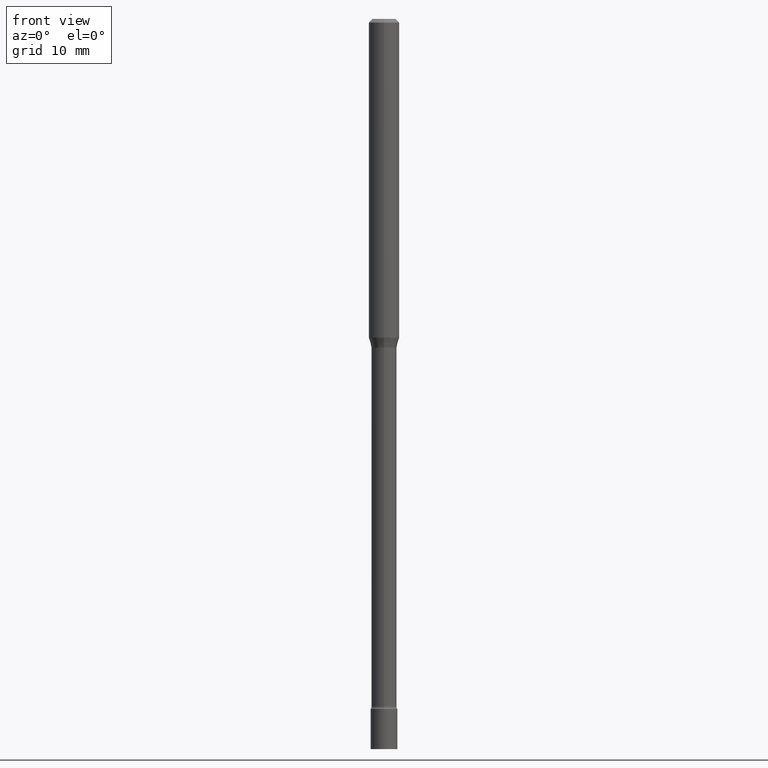
[diagram: clean part render]
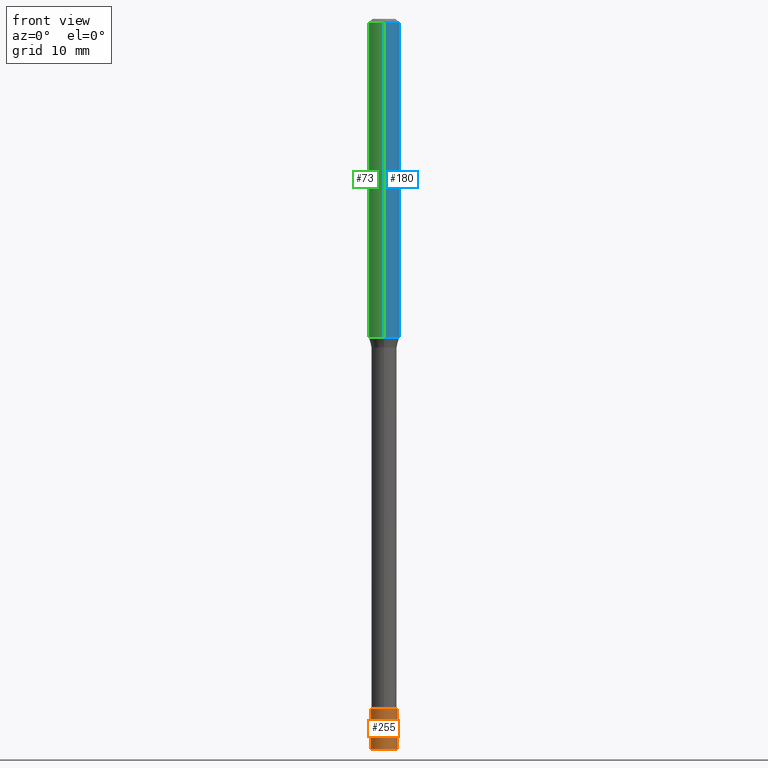
[diagram: same view with three faces highlighted in distinct colors, each labeled with its STEP entity id]
A machine part, front view with three faces highlighted in distinct colors.
Their STEP definitions:

[orange] entity #255 — the highlighted cylindrical surface (edge-blend (fillet) strip) has radius 1.397 mm, axis along (-0, 0, 1).
#23 = DIRECTION ( 'NONE',  ( 1.000000000000000000, -6.982962677686266711E-15, 4.876176775795935793E-29 ) ) ;
#50 = AXIS2_PLACEMENT_3D ( 'NONE', #215, #100, #173 ) ;
#97 = CARTESIAN_POINT ( 'NONE',  ( 0.000000000000000000, 0.000000000000000000, 0.000000000000000000 ) ) ;
#100 = DIRECTION ( 'NONE',  ( -2.445468806185136597E-29, 3.491481338843145583E-15, 1.000000000000000000 ) ) ;
#117 = VECTOR ( 'NONE', #250, 39.37007874015748143 ) ;
#123 = VERTEX_POINT ( 'NONE', #373 ) ;
#130 = CARTESIAN_POINT ( 'NONE',  ( -0.05500000000000000028, -9.795598301406821771E-15, -2.835000000000000409 ) ) ;
#135 = EDGE_CURVE ( 'NONE', #470, #161, #363, .T. ) ;
#161 = VERTEX_POINT ( 'NONE', #256 ) ;
#165 = LINE ( 'NONE', #286, #117 ) ;
#172 = FACE_OUTER_BOUND ( 'NONE', #361, .T. ) ;
#173 = DIRECTION ( 'NONE',  ( 1.000000000000000000, -6.982962677686279332E-15, 0.000000000000000000 ) ) ;
#186 = LINE ( 'NONE', #436, #375 ) ;
#213 = EDGE_CURVE ( 'NONE', #123, #161, #165, .T. ) ;
#215 = CARTESIAN_POINT ( 'NONE',  ( 6.932904065534862655E-29, -9.898349595620319665E-15, -2.835000000000000409 ) ) ;
#221 = ORIENTED_EDGE ( 'NONE', *, *, #135, .F. ) ;
#226 = VERTEX_POINT ( 'NONE', #329 ) ;
#228 = DIRECTION ( 'NONE',  ( 1.000000000000000000, -6.982962677686279332E-15, 0.000000000000000000 ) ) ;
#250 = DIRECTION ( 'NONE',  ( -2.445468806185136877E-29, 3.491481338843145188E-15, 1.000000000000000000 ) ) ;
#255 = ADVANCED_FACE ( 'NONE', ( #172 ), #337, .T. ) ;
#256 = CARTESIAN_POINT ( 'NONE',  ( 0.05500000000000000028, -1.028241254289306465E-14, -2.835000000000000409 ) ) ;
#280 = DIRECTION ( 'NONE',  ( -2.445468806185136877E-29, 3.491481338843145188E-15, 1.000000000000000000 ) ) ;
#286 = CARTESIAN_POINT ( 'NONE',  ( 0.05500000000000000028, -3.840629472727446888E-16, 2.681897226687764826E-30 ) ) ;
#294 = DIRECTION ( 'NONE',  ( -2.445468806185136597E-29, 3.491481338843145583E-15, 1.000000000000000000 ) ) ;
#305 = EDGE_CURVE ( 'NONE', #226, #123, #417, .T. ) ;
#310 = DIRECTION ( 'NONE',  ( -2.445468806185136597E-29, 3.491481338843145583E-15, 1.000000000000000000 ) ) ;
#324 = ORIENTED_EDGE ( 'NONE', *, *, #421, .F. ) ;
#327 = ORIENTED_EDGE ( 'NONE', *, *, #305, .T. ) ;
#329 = CARTESIAN_POINT ( 'NONE',  ( -0.05500000000000000028, -9.795598301406821771E-15, -3.000000000000000444 ) ) ;
#337 = CYLINDRICAL_SURFACE ( 'NONE', #507, 0.05500000000000000028 ) ;
#351 = AXIS2_PLACEMENT_3D ( 'NONE', #394, #310, #228 ) ;
#354 = ORIENTED_EDGE ( 'NONE', *, *, #213, .T. ) ;
#361 = EDGE_LOOP ( 'NONE', ( #324, #327, #354, #221 ) ) ;
#363 = CIRCLE ( 'NONE', #50, 0.05500000000000000028 ) ;
#373 = CARTESIAN_POINT ( 'NONE',  ( 0.05500000000000000028, -1.085850696380218292E-14, -3.000000000000000444 ) ) ;
#375 = VECTOR ( 'NONE', #280, 39.37007874015748143 ) ;
#394 = CARTESIAN_POINT ( 'NONE',  ( 7.336406418555409790E-29, -1.047444401652943635E-14, -3.000000000000000444 ) ) ;
#417 = CIRCLE ( 'NONE', #351, 0.05500000000000000028 ) ;
#421 = EDGE_CURVE ( 'NONE', #226, #470, #186, .T. ) ;
#436 = CARTESIAN_POINT ( 'NONE',  ( -0.05500000000000000028, 3.907985046680551042E-16, -2.705414299640198362E-30 ) ) ;
#470 = VERTEX_POINT ( 'NONE', #130 ) ;
#507 = AXIS2_PLACEMENT_3D ( 'NONE', #97, #294, #23 ) ;

[blue] entity #180 — the highlighted cylindrical surface (edge-blend (fillet) strip) has radius 1.5875 mm, axis along (-0, 0, 1).
#1 = DIRECTION ( 'NONE',  ( -2.445453515065579190E-29, 3.491503236596668519E-15, 1.000000000000000000 ) ) ;
#20 = AXIS2_PLACEMENT_3D ( 'NONE', #251, #485, #416 ) ;
#26 = VERTEX_POINT ( 'NONE', #312 ) ;
#30 = ORIENTED_EDGE ( 'NONE', *, *, #59, .F. ) ;
#41 = CARTESIAN_POINT ( 'NONE',  ( 3.202795432268188890E-29, -4.572800320688787999E-15, -1.309693851278256549 ) ) ;
#59 = EDGE_CURVE ( 'NONE', #26, #333, #266, .T. ) ;
#69 = DIRECTION ( 'NONE',  ( -2.445453515065579470E-29, 3.491503236596668913E-15, 1.000000000000000000 ) ) ;
#120 = LINE ( 'NONE', #476, #296 ) ;
#121 = VECTOR ( 'NONE', #352, 39.37007874015748143 ) ;
#140 = VERTEX_POINT ( 'NONE', #219 ) ;
#162 = CARTESIAN_POINT ( 'NONE',  ( 0.000000000000000000, 0.000000000000000000, 0.000000000000000000 ) ) ;
#180 = ADVANCED_FACE ( 'NONE', ( #222 ), #460, .T. ) ;
#219 = CARTESIAN_POINT ( 'NONE',  ( 4.440892098500946636E-16, 0.06249999999999545502, -1.309693851278256771 ) ) ;
#222 = FACE_OUTER_BOUND ( 'NONE', #396, .T. ) ;
#247 = DIRECTION ( 'NONE',  ( -6.982962677686265922E-15, -1.000000000000000000, 3.491503236596668124E-15 ) ) ;
#251 = CARTESIAN_POINT ( 'NONE',  ( 3.668180272598376107E-31, -5.237254854895013132E-17, -0.01500000000000003067 ) ) ;
#266 = LINE ( 'NONE', #404, #121 ) ;
#296 = VECTOR ( 'NONE', #69, 39.37007874015748143 ) ;
#312 = CARTESIAN_POINT ( 'NONE',  ( -4.364351673553594740E-16, -0.06250000000000453804, -1.309693851278256327 ) ) ;
#330 = DIRECTION ( 'NONE',  ( -2.445453515065579190E-29, 3.491503236596668519E-15, 1.000000000000000000 ) ) ;
#331 = AXIS2_PLACEMENT_3D ( 'NONE', #162, #1, #247 ) ;
#333 = VERTEX_POINT ( 'NONE', #353 ) ;
#352 = DIRECTION ( 'NONE',  ( -2.445453515065579470E-29, 3.491503236596668913E-15, 1.000000000000000000 ) ) ;
#353 = CARTESIAN_POINT ( 'NONE',  ( -4.364351673553912750E-16, -0.06250000000000005551, -0.01499999999999981209 ) ) ;
#364 = CARTESIAN_POINT ( 'NONE',  ( 4.440892098500948609E-16, 0.06249999999999995143, -0.01500000000000024751 ) ) ;
#380 = CIRCLE ( 'NONE', #426, 0.06250000000000000000 ) ;
#381 = ORIENTED_EDGE ( 'NONE', *, *, #483, .F. ) ;
#396 = EDGE_LOOP ( 'NONE', ( #440, #482, #381, #30 ) ) ;
#404 = CARTESIAN_POINT ( 'NONE',  ( -4.364351673553916201E-16, -0.06250000000000000000, 2.182189522872917578E-16 ) ) ;
#408 = EDGE_CURVE ( 'NONE', #140, #511, #120, .T. ) ;
#416 = DIRECTION ( 'NONE',  ( -6.982962677686265922E-15, -1.000000000000000000, 3.483106191921935554E-15 ) ) ;
#426 = AXIS2_PLACEMENT_3D ( 'NONE', #41, #330, #446 ) ;
#434 = CIRCLE ( 'NONE', #20, 0.06250000000000000000 ) ;
#440 = ORIENTED_EDGE ( 'NONE', *, *, #500, .T. ) ;
#446 = DIRECTION ( 'NONE',  ( -6.982962677686265922E-15, -1.000000000000000000, 4.370956789862821150E-15 ) ) ;
#460 = CYLINDRICAL_SURFACE ( 'NONE', #331, 0.06250000000000000000 ) ;
#476 = CARTESIAN_POINT ( 'NONE',  ( 4.440892098500625669E-16, 0.06250000000000000000, -2.182189522872917578E-16 ) ) ;
#482 = ORIENTED_EDGE ( 'NONE', *, *, #408, .T. ) ;
#483 = EDGE_CURVE ( 'NONE', #333, #511, #434, .T. ) ;
#485 = DIRECTION ( 'NONE',  ( -2.445453515065579190E-29, 3.491503236596668519E-15, 1.000000000000000000 ) ) ;
#500 = EDGE_CURVE ( 'NONE', #26, #140, #380, .T. ) ;
#511 = VERTEX_POINT ( 'NONE', #364 ) ;

[green] entity #73 — the highlighted cylindrical surface (edge-blend (fillet) strip) has radius 1.5875 mm, axis along (-0, 0, 1).
#11 = DIRECTION ( 'NONE',  ( -6.982962677686265922E-15, -1.000000000000000000, 4.370956789862821150E-15 ) ) ;
#26 = VERTEX_POINT ( 'NONE', #312 ) ;
#53 = CARTESIAN_POINT ( 'NONE',  ( 3.202795432268188890E-29, -4.572800320688787999E-15, -1.309693851278256549 ) ) ;
#59 = EDGE_CURVE ( 'NONE', #26, #333, #266, .T. ) ;
#69 = DIRECTION ( 'NONE',  ( -2.445453515065579470E-29, 3.491503236596668913E-15, 1.000000000000000000 ) ) ;
#73 = ADVANCED_FACE ( 'NONE', ( #150 ), #317, .T. ) ;
#94 = CARTESIAN_POINT ( 'NONE',  ( 3.668180272598376107E-31, -5.237254854895013132E-17, -0.01500000000000003067 ) ) ;
#111 = EDGE_CURVE ( 'NONE', #140, #26, #359, .T. ) ;
#119 = DIRECTION ( 'NONE',  ( -6.982962677686265922E-15, -1.000000000000000000, 3.491503236596668124E-15 ) ) ;
#120 = LINE ( 'NONE', #476, #296 ) ;
#121 = VECTOR ( 'NONE', #352, 39.37007874015748143 ) ;
#140 = VERTEX_POINT ( 'NONE', #219 ) ;
#150 = FACE_OUTER_BOUND ( 'NONE', #488, .T. ) ;
#183 = EDGE_CURVE ( 'NONE', #511, #333, #343, .T. ) ;
#219 = CARTESIAN_POINT ( 'NONE',  ( 4.440892098500946636E-16, 0.06249999999999545502, -1.309693851278256771 ) ) ;
#264 = DIRECTION ( 'NONE',  ( -2.445453515065579190E-29, 3.491503236596668519E-15, 1.000000000000000000 ) ) ;
#266 = LINE ( 'NONE', #404, #121 ) ;
#267 = DIRECTION ( 'NONE',  ( -2.445453515065579190E-29, 3.491503236596668519E-15, 1.000000000000000000 ) ) ;
#272 = ORIENTED_EDGE ( 'NONE', *, *, #59, .T. ) ;
#281 = ORIENTED_EDGE ( 'NONE', *, *, #408, .F. ) ;
#296 = VECTOR ( 'NONE', #69, 39.37007874015748143 ) ;
#312 = CARTESIAN_POINT ( 'NONE',  ( -4.364351673553594740E-16, -0.06250000000000453804, -1.309693851278256327 ) ) ;
#317 = CYLINDRICAL_SURFACE ( 'NONE', #423, 0.06250000000000000000 ) ;
#328 = DIRECTION ( 'NONE',  ( -6.982962677686265922E-15, -1.000000000000000000, 3.483106191921935554E-15 ) ) ;
#333 = VERTEX_POINT ( 'NONE', #353 ) ;
#340 = AXIS2_PLACEMENT_3D ( 'NONE', #94, #413, #328 ) ;
#343 = CIRCLE ( 'NONE', #340, 0.06250000000000000000 ) ;
#347 = CARTESIAN_POINT ( 'NONE',  ( 0.000000000000000000, 0.000000000000000000, 0.000000000000000000 ) ) ;
#352 = DIRECTION ( 'NONE',  ( -2.445453515065579470E-29, 3.491503236596668913E-15, 1.000000000000000000 ) ) ;
#353 = CARTESIAN_POINT ( 'NONE',  ( -4.364351673553912750E-16, -0.06250000000000005551, -0.01499999999999981209 ) ) ;
#359 = CIRCLE ( 'NONE', #401, 0.06250000000000000000 ) ;
#364 = CARTESIAN_POINT ( 'NONE',  ( 4.440892098500948609E-16, 0.06249999999999995143, -0.01500000000000024751 ) ) ;
#392 = ORIENTED_EDGE ( 'NONE', *, *, #111, .T. ) ;
#401 = AXIS2_PLACEMENT_3D ( 'NONE', #53, #264, #11 ) ;
#404 = CARTESIAN_POINT ( 'NONE',  ( -4.364351673553916201E-16, -0.06250000000000000000, 2.182189522872917578E-16 ) ) ;
#408 = EDGE_CURVE ( 'NONE', #140, #511, #120, .T. ) ;
#413 = DIRECTION ( 'NONE',  ( -2.445453515065579190E-29, 3.491503236596668519E-15, 1.000000000000000000 ) ) ;
#423 = AXIS2_PLACEMENT_3D ( 'NONE', #347, #267, #119 ) ;
#476 = CARTESIAN_POINT ( 'NONE',  ( 4.440892098500625669E-16, 0.06250000000000000000, -2.182189522872917578E-16 ) ) ;
#488 = EDGE_LOOP ( 'NONE', ( #281, #392, #272, #503 ) ) ;
#503 = ORIENTED_EDGE ( 'NONE', *, *, #183, .F. ) ;
#511 = VERTEX_POINT ( 'NONE', #364 ) ;